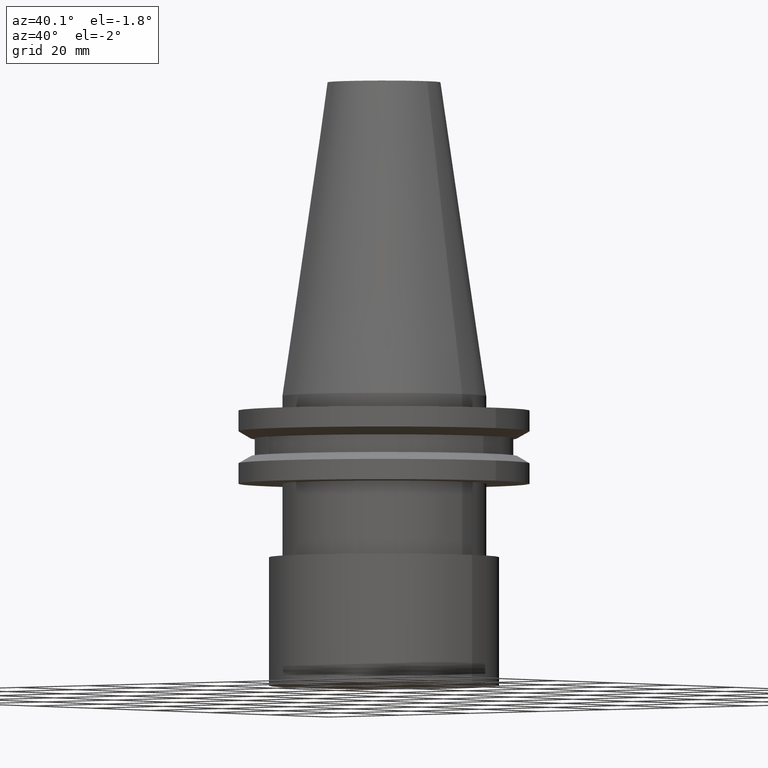
[diagram: clean part render]
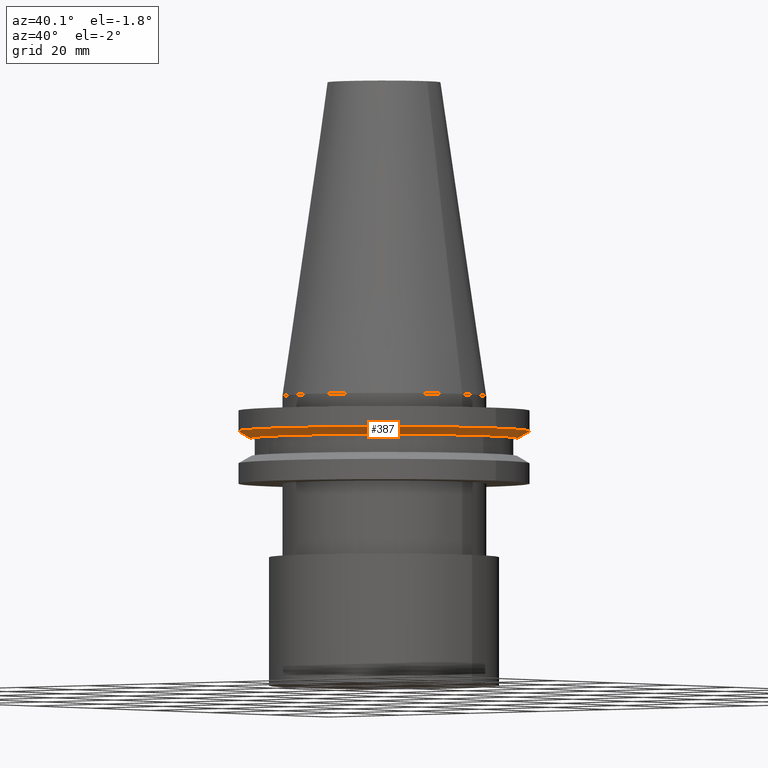
[diagram: same view with one face highlighted and labeled with its STEP entity id]
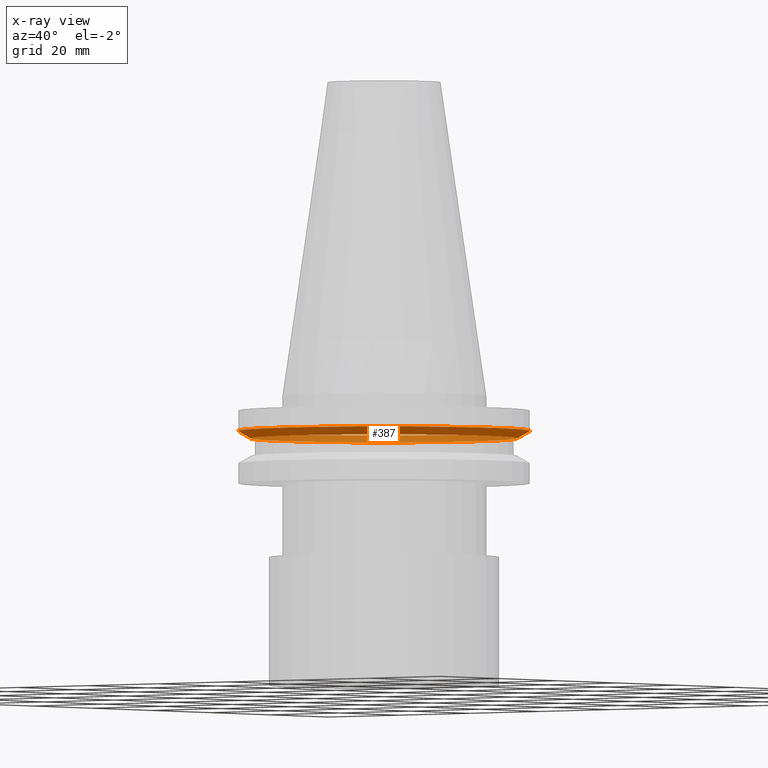
[diagram: x-ray of the same camera — body ghosted, the highlighted face saturated]
A machine part, auxiliary view. The second image highlights one B-rep face of the part: STEP entity #387.
The next image is the same camera in x-ray: the body ghosted, the highlighted face saturated — about 41% of this face is hidden behind the body in this view.
In plain terms, the highlighted conical surface has half-angle 60 deg.
Its self-contained STEP definition (entity closure, byte-faithful):
#4 = ORIENTED_EDGE ( 'NONE', *, *, #256, .T. ) ;
#40 = AXIS2_PLACEMENT_3D ( 'NONE', #118, #347, #61 ) ;
#43 = DIRECTION ( 'NONE',  ( -0.000000000000000000, -0.000000000000000000, 1.000000000000000000 ) ) ;
#61 = DIRECTION ( 'NONE',  ( 1.000000000000000000, 0.000000000000000000, 0.000000000000000000 ) ) ;
#75 = AXIS2_PLACEMENT_3D ( 'NONE', #310, #85, #206 ) ;
#85 = DIRECTION ( 'NONE',  ( -0.000000000000000000, -0.000000000000000000, 1.000000000000000000 ) ) ;
#88 = CIRCLE ( 'NONE', #288, 28.97919780457007732 ) ;
#109 = CARTESIAN_POINT ( 'NONE',  ( 31.75000000000000000, 0.000000000000000000, -7.605276606597335842 ) ) ;
#118 = CARTESIAN_POINT ( 'NONE',  ( 0.000000000000000000, 0.000000000000000000, -7.605276606597335842 ) ) ;
#175 = FACE_OUTER_BOUND ( 'NONE', #354, .T. ) ;
#198 = VERTEX_POINT ( 'NONE', #328 ) ;
#206 = DIRECTION ( 'NONE',  ( 1.000000000000000000, 0.000000000000000000, 0.000000000000000000 ) ) ;
#256 = EDGE_CURVE ( 'NONE', #198, #198, #88, .T. ) ;
#265 = EDGE_LOOP ( 'NONE', ( #4 ) ) ;
#268 = CIRCLE ( 'NONE', #40, 31.75000000000000000 ) ;
#288 = AXIS2_PLACEMENT_3D ( 'NONE', #335, #43, #296 ) ;
#289 = CONICAL_SURFACE ( 'NONE', #75, 28.97919780457007732, 1.047197551196598297 ) ;
#296 = DIRECTION ( 'NONE',  ( 1.000000000000000000, 0.000000000000000000, 0.000000000000000000 ) ) ;
#309 = VERTEX_POINT ( 'NONE', #109 ) ;
#310 = CARTESIAN_POINT ( 'NONE',  ( 0.000000000000000000, 0.000000000000000000, -9.205000000000005400 ) ) ;
#315 = EDGE_CURVE ( 'NONE', #309, #309, #268, .T. ) ;
#328 = CARTESIAN_POINT ( 'NONE',  ( 28.97919780457007732, 0.000000000000000000, -9.205000000000005400 ) ) ;
#335 = CARTESIAN_POINT ( 'NONE',  ( 0.000000000000000000, 0.000000000000000000, -9.205000000000005400 ) ) ;
#347 = DIRECTION ( 'NONE',  ( -0.000000000000000000, -0.000000000000000000, 1.000000000000000000 ) ) ;
#354 = EDGE_LOOP ( 'NONE', ( #375 ) ) ;
#369 = FACE_BOUND ( 'NONE', #265, .T. ) ;
#375 = ORIENTED_EDGE ( 'NONE', *, *, #315, .F. ) ;
#387 = ADVANCED_FACE ( 'NONE', ( #175, #369 ), #289, .T. ) ;